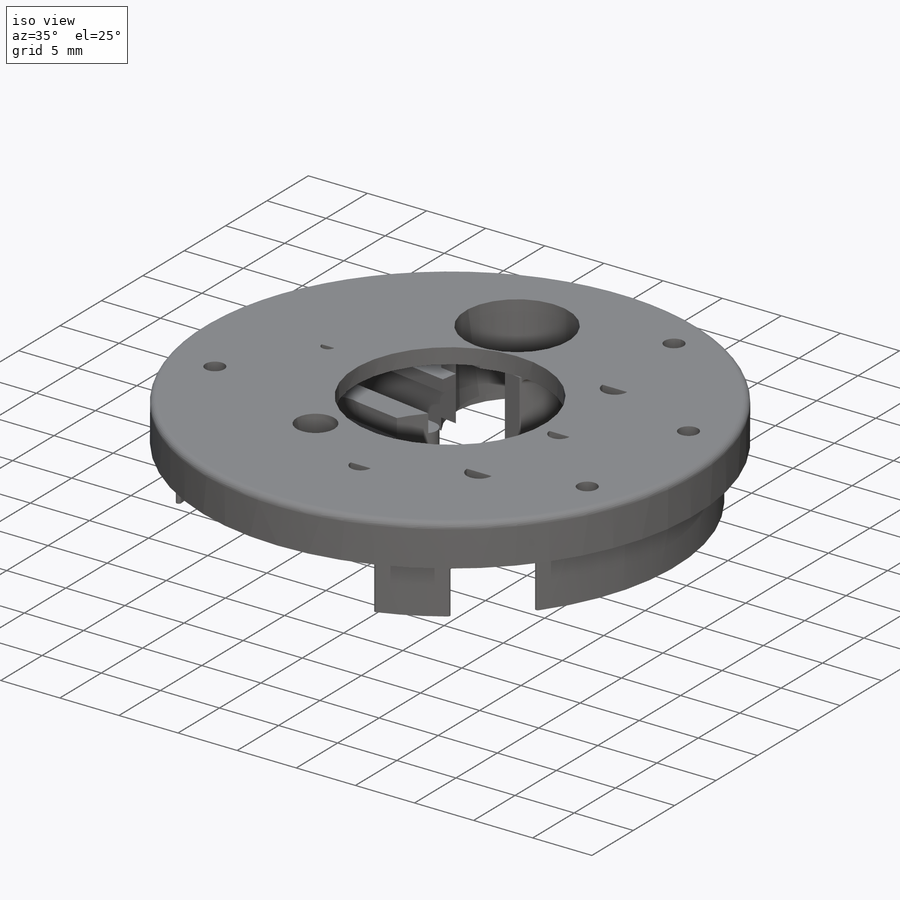
[diagram: iso view]
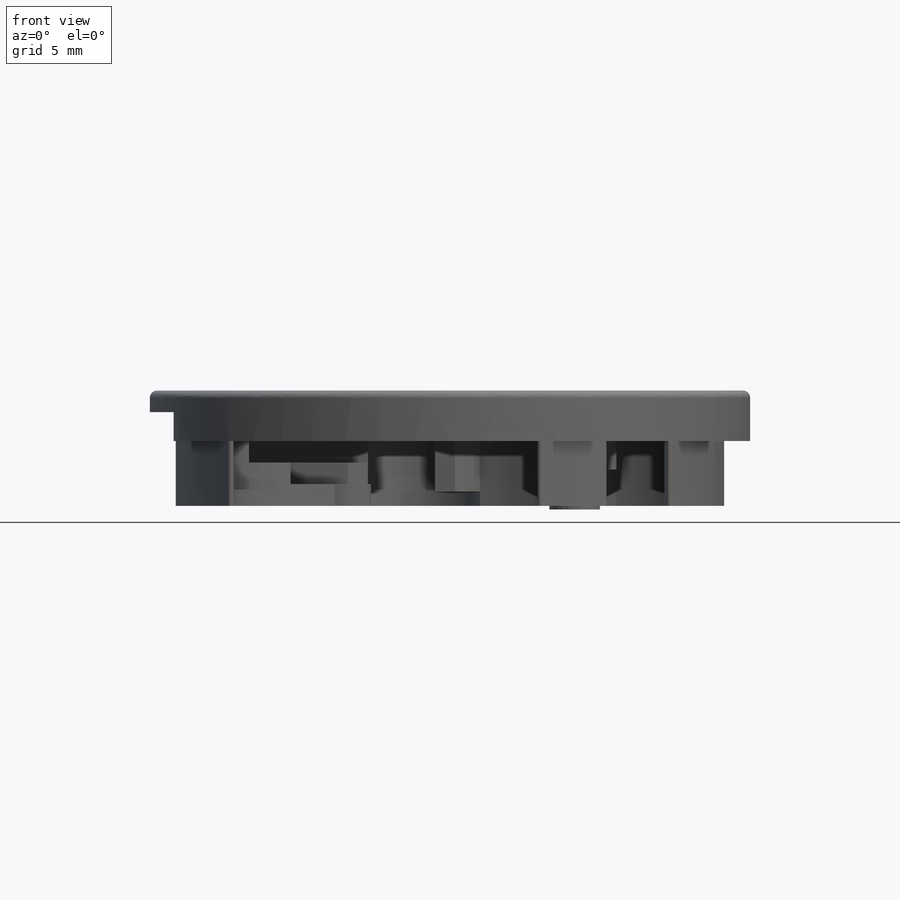
[diagram: front view]
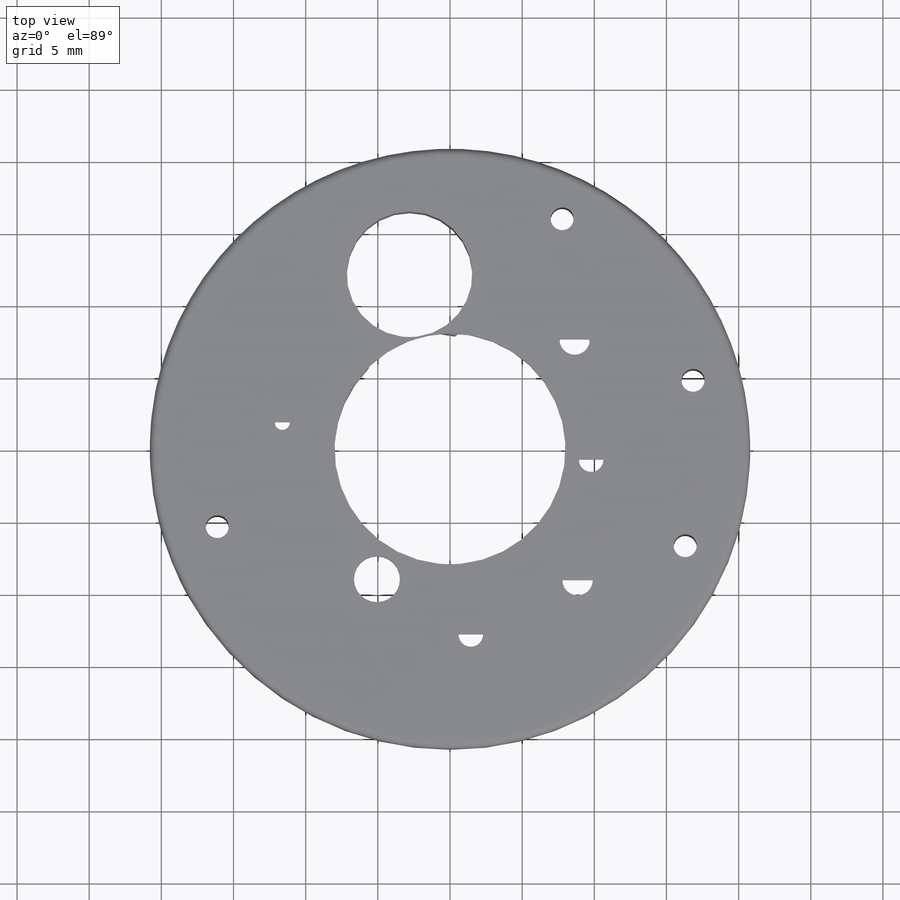
[diagram: top view]
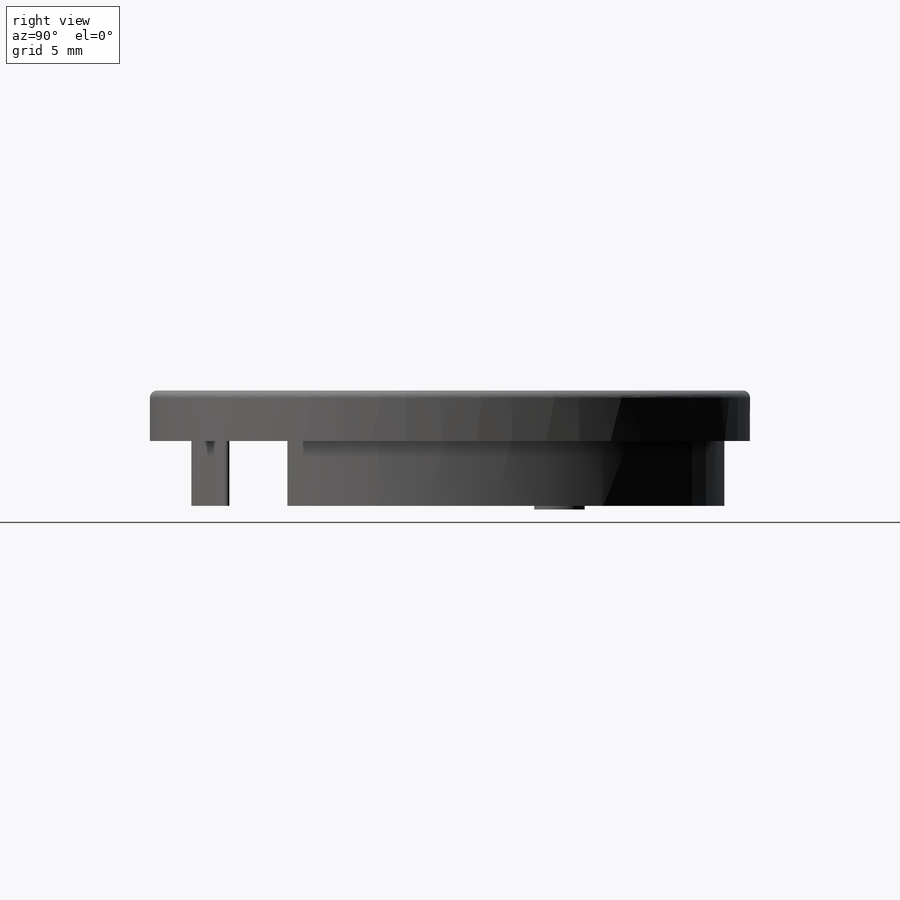
[diagram: right view]
SOLIDWORKS PART (.sldprt)
format: sldprt  version: not decoded by parser v0  size: 4,511,744 bytes
history: native  units: mm
features: sketch x86, cut_extrude x51, extrude x25, fillet x14, plane x6, material x1 (+31 scaffold rows collapsed; 15 parser-record rows omitted)
feature tree (229):
  scaffold x31  (default folders/planes/origin — collapsed)
  material  "Material <not specified>"
  plane  "Plane1"  Offset=22mm
  plane  "Plane3"  Offset=18.5mm
  sketch  "Gear Sketch"  dims[c1.D6=2.814mm c1.D7=4.6981mm c1.D8=4.9mm c1.D9=42.8283mm c1.D10=18.0mm c1.D11=17.3mm c1.spacing around holes=4.0mm c1.D14=~8.422761mm c1.D15=~2.176066mm c1.D13=11.0mm c2.D14=11.76mm c2.D15=11.76mm c2.D16=38.0mm c2.D8=1.9mm c2.D17=2.4mm c2.D18=1.9mm c2.D19=2.4mm c2.D1=7.55mm c2.D2=8.3mm c2.D3=8.4mm c2.D4=8.4mm c2.D5=12.3mm c3.D17=0.9mm c3.D12=1.0mm c3.D16=1.2mm c3.D20=0.5mm c3.D21=0.5mm c3.D22=0.5mm c3.D23=0.5mm]
  sketch  "Outline Sketch"  dims[D1=8.7mm D2=10.5mm D3=19.3mm D4=17.3mm D6=4.0mm D7=1.0mm D5=2.0mm]
  sketch  "Hole Size Sketch"  dims[shaft hole size=1.7mm shaft hole size fat AX12A axis=2.1mm D1=~0.94028mm]
  parser-record x15  (decoder bookkeeping rows leaked as tree rows — omitted from the tree; the rows remain in map.json)
  sketch  "Sketch1"  dims[D1=17.3mm D2=19.3mm D4=8.7mm D5=10.5mm D3=25.8mm D6=16.5mm D7=1.7mm D8=1.0mm]
  extrude  "Bottom Base Plate"  Depth=3mm
  sketch  "Sketch15"  dims[c1.D2=~1.796463mm c1.D3=1.7mm c2.D2=~1.649181mm c2.D4=1.7mm c3.D2=~1.749119mm c3.D4=1.7mm c4.D2=~1.386981mm c4.D4=2.1mm c5.D2=8.4mm c5.D1=1.0mm c6.D2=1.5mm]
  extrude  "Top Base Plate"  Depth=1.5mm
  sketch  "Sketch17"  dims[D1=2.5mm]
  cut_extrude  "Top Base Plate Center Hole"  [1 undecoded]
  sketch  "Sketch2"  dims[c1.D1=1.0mm c1.D2=4.7752mm c2.D1=1.0mm]
  extrude  "Boss-Extrude2"  Depth=14.8mm
  sketch  "Sketch3"  dims[D1=6.4mm]
  extrude  "Boss-Extrude3"  Depth=2mm
  sketch  "Sketch78"  dims[D1=10.0mm D2=2.1mm D3=2.1mm]
  cut_extrude  "Cut-Extrude28"  [1 undecoded]
  sketch  "Sketch51"  dims[D1=4.8mm D2=0.5mm]
  extrude  "Boss-Extrude27"  Depth=8mm
  sketch  "Sketch52"
  cut_extrude  "Cut-Extrude18"  Depth=8mm
  sketch  "Sketch50"  dims[D1=3.8mm D2=1.0mm]
  cut_extrude  "Hole through base plate"  [1 undecoded]
  sketch  "Sketch94"
  sketch  "Sketch95"  dims[D1=4.8mm]
  sketch  "Sketch96"
  sketch  "Sketch97"
  fillet  "Fillet12"  Radius=0.5mm
  sketch  "Sketch98"
  cut_extrude  "Clear Motor Cavity"  [1 undecoded]
  sketch  "Sketch10"  dims[pedestalDiameter=3.5mm]
  extrude  "Boss-Extrude4"  Depth=7.2mm
  sketch  "Sketch13"  dims[D1=~4.300067mm]
  extrude  "Boss-Extrude5"  Depth=12mm
  sketch  "Sketch23"  dims[D1=~1.59468mm]
  extrude  "Boss-Extrude13"  Depth=0.5mm
  sketch  "Sketch28"
  extrude  "Large Gear Bushing Pedestal"  Depth=1.75mm
  sketch  "Dynamixel Board Sketch"  dims[D3=3.75mm D1=11.2mm D2=27.5mm D4=4.5mm D5=5.0mm D6=3.0mm D7=2.0mm D8=10.0mm]
  sketch  "Sketch4"  dims[D2=~0.711838mm D1=7.55mm D3=2.0mm]
  cut_extrude  "Shaft4 Hole Bottom"  Depth=1.7mm
  sketch  "Sketch43"
  cut_extrude  "Shaft4 Hole Bottom Outlet"  [1 undecoded]
  sketch  "Sketch6"  dims[c1.D4=~1.919559mm c1.D2=1.7mm c1.D5=~2.311832mm c2.D2=1.7mm c2.D1=8.3mm c3.D2=10.0mm c3.D3=11.4mm]
  cut_extrude  "Shaft2 Hole Bottom Outlet"  [1 undecoded]
  sketch  "Sketch115"
  cut_extrude  "Shaft1+3 Hole Bottom Outlets AX12"  [1 undecoded]
  sketch  "Sketch116"
  cut_extrude  "Shaft1+3 Hole Bottom Outlets AX12A"  [1 undecoded]
  sketch  "Sketch117"
  cut_extrude  "Shaft3 Hole Bottom AX12"  Depth=4.7mm
  sketch  "Sketch30"
  cut_extrude  "Shaft3 Hole Bottom AX12A"  Depth=4.7mm
  sketch  "Sketch31"
  cut_extrude  "Shaft2 Hole Bottom"  Depth=2.2mm
  sketch  "Sketch32"
  cut_extrude  "Shaft1 Hole Bottom AX12"  Depth=3.2mm
  sketch  "Sketch118"
  cut_extrude  "Shaft1 Hole Bottom AX12A"  Depth=3.2mm
  sketch  "Sketch39"  dims[D1=0.5mm]
  cut_extrude  "Large Gear Cutout"  Depth=1.5mm
  plane  "Plane4"  Offset=19mm
  sketch  "Sketch47"  dims[D1=0.0mm]
  extrude  "Boss-Extrude26"  Depth=12.5mm
  sketch  "Sketch60"
  extrude  "Boss-Extrude32"  Depth=12.5mm
  fillet  "Fillet8"  Radius=0.2mm
  fillet  "Fillet9"  Radius=1mm
  fillet  "Fillet13"  Radius=0.5mm
  sketch  "Sketch99"  dims[D1=~1.321576mm]
  cut_extrude  "Shaft1 Hole Top Outlet AX12A"  [1 undecoded]
  sketch  "Sketch101"  dims[D1=~1.481232mm]
  cut_extrude  "Shaft1 Hole Top Outlet AX12"  [1 undecoded]
  sketch  "Sketch102"  dims[D1=~1.804387mm]
  cut_extrude  "Shaft2 Hole Top Outlet"  [1 undecoded]
  sketch  "Sketch105"  dims[D1=~1.401816mm]
  cut_extrude  "Shaft3 Hole Top Outlet AX12A"  [1 undecoded]
  sketch  "Sketch103"  dims[D1=~1.846845mm]
  cut_extrude  "Shaft3 Hole Top Outlet AX12"  [1 undecoded]
  sketch  "Sketch104"  dims[D1=~2.499414mm]
  cut_extrude  "Shaft 4 Hole Top Outlet"  [1 undecoded]
  sketch  "Sketch18"
  cut_extrude  "Shaft Holes Top Pilots AX12A"  Depth=1mm
  sketch  "Sketch107"
  cut_extrude  "Shaft Holes Top Pilots AX12"  Depth=1mm
  sketch  "Sketch22"  dims[D1=3.0mm]
  extrude  "Shaft1 Pedestal AX12"  Depth=6.75mm
  sketch  "Sketch108"
  cut_extrude  "Shaft1 Pedestal AX12 to AX12A mod"  [1 undecoded]
  sketch  "Sketch21"  dims[D1=1.7mm]
  extrude  "Shaft2 Pedestal"  Depth=4mm
  sketch  "Sketch20"  dims[D1=~6.007782mm]
  extrude  "Shaft3 Pedestal AX12"  Depth=1.5mm
  sketch  "Sketch109"
  cut_extrude  "Shaft3 Pedestal AX12 to AX12A mod"  [1 undecoded]
  sketch  "Sketch29"
  extrude  "Big Gear Pedestal"  Depth=5.5mm
  fillet  "Pedestal Fillet"  Radius=0.5mm
  sketch  "Sketch33"  dims[D2=~0.573843mm D1=0.5mm]
  extrude  "Boss-Extrude20"  Depth=3mm
  sketch  "Sketch55"  dims[D1=0.0mm D2=0.0mm]
  extrude  "Connection to Base Plate"  [1 undecoded]
  sketch  "Potentiometer Sketch"  dims[c1.D8=5.0mm c1.D11=2.0mm c1.D14=2.5mm c1.D1=12.05mm c1.D2=~2.968607mm c2.D2=45.0deg c2.D3=~2.56383mm c3.D3=45.0deg c3.D4=5.5mm c3.D5=~5.886961mm c4.D5=90.0deg c5.D5=3.5mm c5.D6=0.8mm c5.D7=5.5mm c5.D9=1.7mm c5.D10=0.4mm c5.D12=2.3mm c5.D13=2.75mm c5.D15=2.0mm c6.D12=8.5mm c6.D11=8.0mm c7.D12=~11.862176mm c8.D12=30.0deg]
  sketch  "Sketch92"
  cut_extrude  "Potentiometer Feet Holes Slot"  Depth=1.5mm
  sketch  "Sketch36"  dims[D1=5.2mm D2=2.55mm]
  cut_extrude  "Potentiometer Center Hole Slot"  Depth=1.5mm
  sketch  "Sketch119"
  cut_extrude  "Cut-Extrude34"  [1 undecoded]
  sketch  "Sketch67"  dims[D1=1.2mm D2=7.5mm D3=~6.900346mm]
  cut_extrude  "Cable Slot"  [1 undecoded]
  sketch  "Sketch73"  dims[c1.D2=~4.155635mm c2.D2=~0.800056deg c3.D2=0.5mm c3.D3=2.0mm c3.D4=5.4mm c3.D1=0.05mm]
  extrude  "Boss-Extrude35"  Depth=1.8mm
  sketch  "Sketch68"
  cut_extrude  "Potentiometer Cable Channel"  [1 undecoded]
  sketch  "Sketch77"
  cut_extrude  "Potentiometer Cable Channel 2"  Depth=2mm
  fillet  "Potentiometer Cable Channel Fillet"  Radius=0.5mm
  sketch  "Sketch45"  dims[D1=14.0mm]
  cut_extrude  "Gear Cavity"  Depth=1.9mm
  sketch  "Sketch93"  dims[D1=1.0mm]
  cut_extrude  "Special Fillet"  [1 undecoded]
  sketch  "Sketch89"  dims[D1=4.3mm]
  cut_extrude  "Potentiometer Gear Top Circular Cut"  Depth=0.2mm
  sketch  "Sketch121"  dims[D1=1.05mm]
  cut_extrude  "Potentiometer Gear Shaft Hole"  Depth=0.5mm
  sketch  "Sketch122"  dims[D1=0.0mm]
  cut_extrude  "Potentiometer Gear Shaft Half-Hole"  [1 undecoded]
  sketch  "Sketch57"
  extrude  "Wall Main Extrude"  Depth=6.5mm
  fillet  "Fillet6"  Radius=1mm
  fillet  "Fillet7"  Radius=0.2mm
  sketch  "Sketch59"  dims[D1=20.8mm]
  extrude  "Bearing Shoulder Top"  Depth=3.5mm
  sketch  "Sketch65"
  cut_extrude  "Gear 4 Cutout"  [1 undecoded]
  sketch  "Sketch66"
  cut_extrude  "Gear 3 Cutout"  [1 undecoded]
  plane  "Plane6"  Offset=0.2mm
  sketch  "Sketch61"  dims[D1=1.0mm]
  extrude  "Bearing Shoulder Bottom"  Depth=3mm
  sketch  "Sketch62"  dims[M2 pilot hole=1.6mm D1=~1.575826mm]
  cut_extrude  "Screw Holes for Connection to Bottom"  [1 undecoded]
  sketch  "Sketch63"  dims[M2 shaft hole size=2.0mm D1=~2.312167mm]
  cut_extrude  "Cut-Extrude20"  [1 undecoded]
  sketch  "Sketch64"  dims[M2 head cap space=3.8mm D1=~4.319496mm]
  cut_extrude  "Cut-Extrude21"  Depth=14mm
  fillet  "Fillet18"  Radius=0.5mm
  fillet  "Fillet19"  Radius=0.5mm
  fillet  "Fillet15"  Radius=0.5mm
  fillet  "Fillet20"  Radius=0.5mm
  fillet  "Fillet16"  Radius=0.5mm
  sketch  "Sketch79"
  extrude  "Top Cover Extrude"  [1 undecoded]
  fillet  "Top Cover Fillet"  Radius=0.5mm
  sketch  "Sketch81"  dims[c1.D1=0.5mm c1.D2=0.5mm c1.D3=0.5mm c1.D4=47.0mm c2.D1=0.5mm c2.D2=0.5mm c2.D3=0.5mm c2.D4=0.5mm c2.D5=0.5mm c3.D2=0.5mm c3.D4=0.5mm c3.D5=0.5mm c3.D6=0.5mm]
  extrude  "Boss-Extrude37"  Depth=13.8mm
  sketch  "Sketch83"
  sketch  "Sketch84"  dims[D1=11.5mm D2=1.0mm D3=11.8mm]
  plane  "Plane7"
  sketch  "Sketch85"  dims[D1=2.0mm D2=0.5mm D3=8.0mm]
  cut_extrude  "Dynamixel Holder Slot"  Depth=13mm
  cut_extrude  "Slot for Voltage Reg"  Depth=5mm
  plane  "Plane9"
  sketch  "Sketch86"  dims[c1.D1=31.25mm c1.D3=~1.230708mm c2.D1=1.6mm c2.D2=35.0mm c2.D3=~1.278846mm c3.D2=19.0mm c4.D2=22.25deg c4.D1=~3.298934mm c5.D1=18.0deg]
  cut_extrude  "Cut-Extrude32"  Depth=10mm
  sketch  "Sketch120"  dims[D1=5.0mm D2=5.0mm D3=5.0mm D4=5.0mm]
  extrude  "Boss-Extrude38"  Depth=10mm
  sketch  "Sketch87"  dims[D1=0.0mm]
  cut_extrude  "Cut-Extrude33"  [1 undecoded]
  sketch  "Sketch111"
  cut_extrude  "Type Marker AX12A Large Part"  Depth=0.3mm
  sketch  "Sketch112"
  cut_extrude  "Type Marker AX12 Large Part"  Depth=0.3mm
  sketch  "Sketch114"
  cut_extrude  "Type Marker AX12A Small Part"  Depth=0.3mm
  sketch  "Sketch113"
  cut_extrude  "Type Marker AX12 Small Part"  Depth=0.3mm
  sketch  "Sketch123"  dims[D1=1.2mm]
  cut_extrude  "Cut-Extrude35"  Depth=0.7mm
  sketch  "Sketch124"  dims[D1=1.3mm]
  extrude  "Boss-Extrude39"  Depth=1mm dowelPinHole=1.6mm no 4 pilot hole=1.6mm no 4 screw top hole=2.2mm
decode coverage: 115 of 176 modeling features carry decoded parameters
note: ~ marks probable driven/reference dimensions
note: 28 parameter values undecoded
summary: no parameter record found for 28 features
note: suppression state not decoded; provenance and decode notes live in map.json
